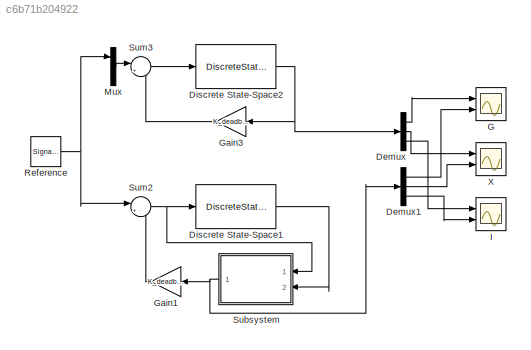
MODEL slx_c6b71b204922
KIND model
CONFIG AbsTol = auto
CONFIG EnableMultiTasking = off
CONFIG FixedStep = auto
CONFIG MaxStep = auto
CONFIG MinStep = auto
CONFIG RelTol = 1e-3
CONFIG SampleTimeConstraint = Unconstrained
CONFIG SolverName = VariableStepAuto
CONFIG StartTime = 0.0
CONFIG StopTime = 500
BLOCK [Demux] Demux
  Outputs = 3
  Ports = [1, 3]
BLOCK [Demux] Demux1
  Outputs = 3
  Ports = [1, 3]
BLOCK [DiscreteStateSpace] Discrete State-Space1
  A = G
  B = H
  C = C
  D = D
  SampleTime = Ts
BLOCK [DiscreteStateSpace] Discrete State-Space2
  A = G
  B = [H zeros(3,2)]
  C = eye(3)
  D = zeros(3)
  SampleTime = Ts
BLOCK [Scope] G
  Floating = off
  NumInputPorts = 2
  Ports = [2]
  ScopeSpecificationString = Simulink.scopes.TimeScopeBlockCfg('CurrentConfiguration', extmgr.ConfigurationSet(extmgr.Configuration('Core','General UI',true),extmgr.Configuration('Core','Source UI',true),extmgr.Configuration('Sources','WiredSimulink',true),extmgr.Configuration('Visuals','Time Domain',true,'SerializedDisplays',{struct('MinYLimReal','-0.00031','MaxYLimReal','0.00031','YLabelReal','','MinYLimMag','0.00000','MaxY...<+1392ch>
BLOCK [Gain] Gain1
  Gain = K_deadbeat
  Multiplication = Matrix(K*u)
BLOCK [Gain] Gain3
  Gain = K_deadbeat
  Multiplication = Matrix(K*u)
BLOCK [Scope] I
  Floating = off
  NumInputPorts = 2
  Ports = [2]
  ScopeSpecificationString = Simulink.scopes.TimeScopeBlockCfg('CurrentConfiguration', extmgr.ConfigurationSet(extmgr.Configuration('Core','General UI',true),extmgr.Configuration('Core','Source UI',true),extmgr.Configuration('Sources','WiredSimulink',true,'DataLoggingVariableName','ScopeData2'),extmgr.Configuration('Visuals','Time Domain',true,'SerializedDisplays',{struct('MinYLimReal','-0.01038','MaxYLimReal','0.03997','YLab...<+1431ch>
BLOCK [Mux] Mux
  DisplayOption = bar
  Inputs = 3
  Ports = [3, 1]
BLOCK [SignalGenerator] Reference
  Frequency = 0.005
  Ports = [0, 1]
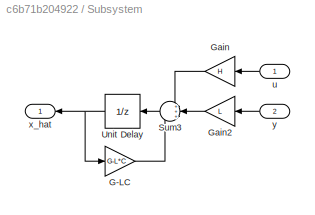
BLOCK [SubSystem] Subsystem
  Ports = [2, 1]
  RequestExecContextInheritance = off
BLOCK [Gain] Subsystem/G-LC
  Gain = G-L*C
  Multiplication = Matrix(K*u)
BLOCK [Gain] Subsystem/Gain
  Gain = H
  Multiplication = Matrix(K*u)
BLOCK [Gain] Subsystem/Gain2
  Gain = L
  Multiplication = Matrix(K*u)
BLOCK [Sum] Subsystem/Sum3
  Inputs = +++
  Ports = [3, 1]
BLOCK [UnitDelay] Subsystem/Unit Delay
  HasFrameUpgradeWarning = on
  SampleTime = -1
BLOCK [Inport] Subsystem/u
BLOCK [Outport] Subsystem/x_hat
BLOCK [Inport] Subsystem/y
  Port = 2
BLOCK [Sum] Sum2
  Inputs = |+-
  Ports = [2, 1]
BLOCK [Sum] Sum3
  Inputs = |+-
  Ports = [2, 1]
BLOCK [Scope] X
  Floating = off
  NumInputPorts = 2
  Ports = [2]
  ScopeSpecificationString = Simulink.scopes.TimeScopeBlockCfg('CurrentConfiguration', extmgr.ConfigurationSet(extmgr.Configuration('Core','General UI',true),extmgr.Configuration('Core','Source UI',true),extmgr.Configuration('Sources','WiredSimulink',true,'DataLoggingVariableName','ScopeData1'),extmgr.Configuration('Visuals','Time Domain',true,'SerializedDisplays',{struct('MinYLimReal','-0.0000022','MaxYLimReal','0.0000022','...<+1447ch>
LINE Demux1:1 -> G:2
LINE Demux1:2 -> X:2
LINE Demux1:3 -> I:2
LINE Demux:1 -> G:1
LINE Demux:2 -> X:1
LINE Demux:3 -> I:1
LINE Discrete State-Space1:1 -> Subsystem:2
NET Discrete State-Space2:1 -> Demux:1, Gain3:1
LINE Gain1:1 -> Sum2:2
LINE Gain3:1 -> Sum3:2
LINE Mux:1 -> Sum3:1
NET Reference:1 -> Mux:1, Sum2:1
LINE Subsystem/G-LC:1 -> Subsystem/Sum3:3
LINE Subsystem/Gain2:1 -> Subsystem/Sum3:2
LINE Subsystem/Gain:1 -> Subsystem/Sum3:1
LINE Subsystem/Sum3:1 -> Subsystem/Unit Delay:1
NET Subsystem/Unit Delay:1 -> Subsystem/G-LC:1, Subsystem/x_hat:1
LINE Subsystem/u:1 -> Subsystem/Gain:1
LINE Subsystem/y:1 -> Subsystem/Gain2:1
NET Subsystem:1 -> Demux1:1, Gain1:1
NET Sum2:1 -> Discrete State-Space1:1, Subsystem:1
LINE Sum3:1 -> Discrete State-Space2:1
note: NET lines group one-source signal fan-out (src -> all destinations, sorted); 1:1 wires keep LINE
